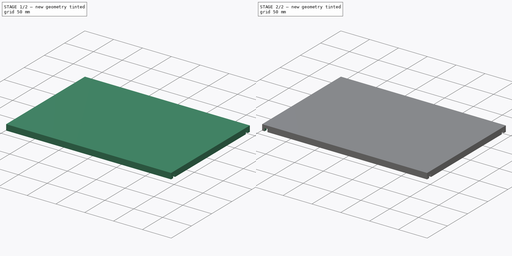
[diagram: build sequence overview — one tinted view per stage of 2, left to right]
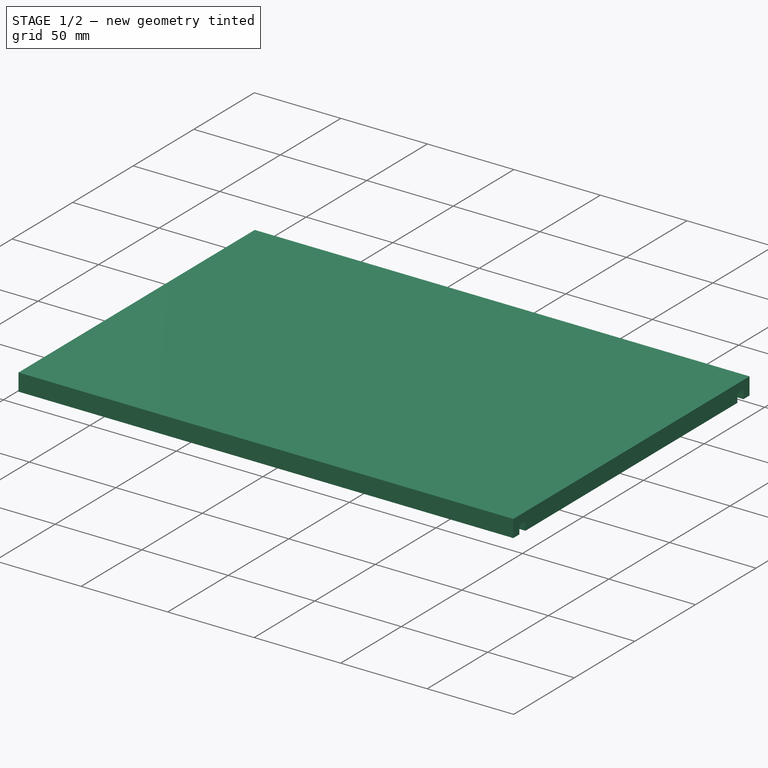
[diagram: stage 1 of 2 — iso view after this stage's code; geometry added in this stage tinted green]
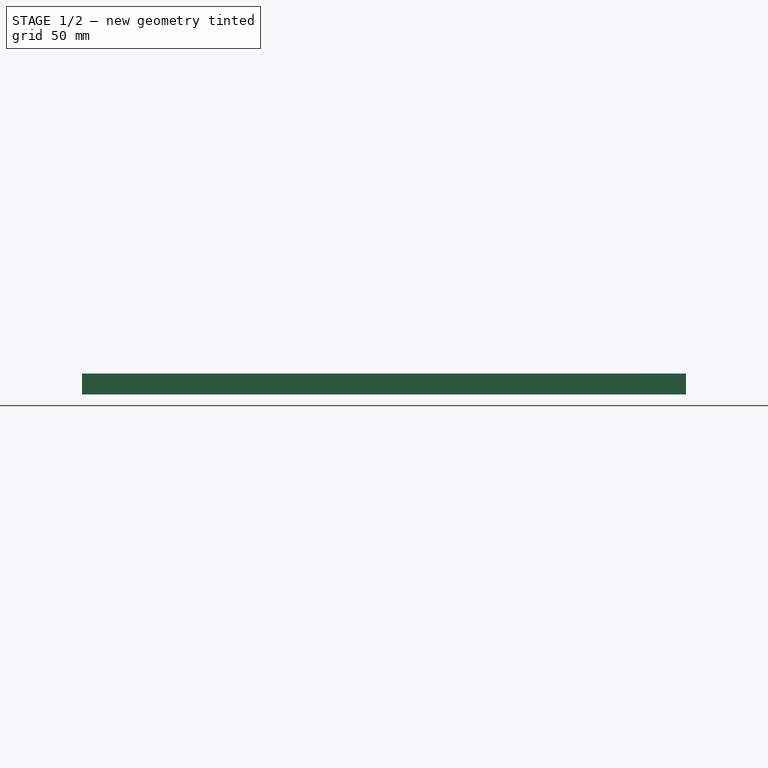
[diagram: stage 1 of 2 — front view after this stage's code; geometry added in this stage tinted green]
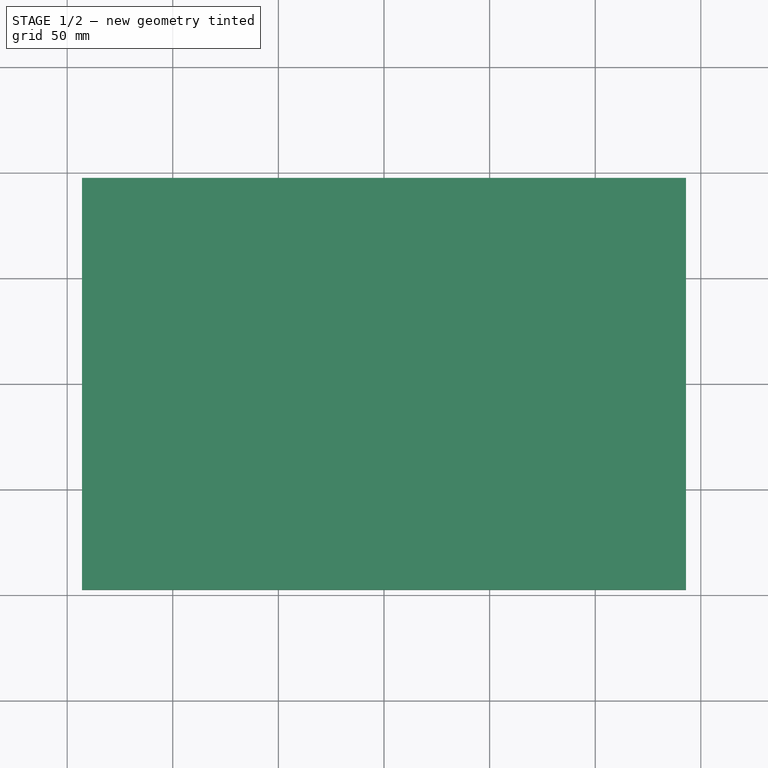
[diagram: stage 1 of 2 — top view after this stage's code; geometry added in this stage tinted green]
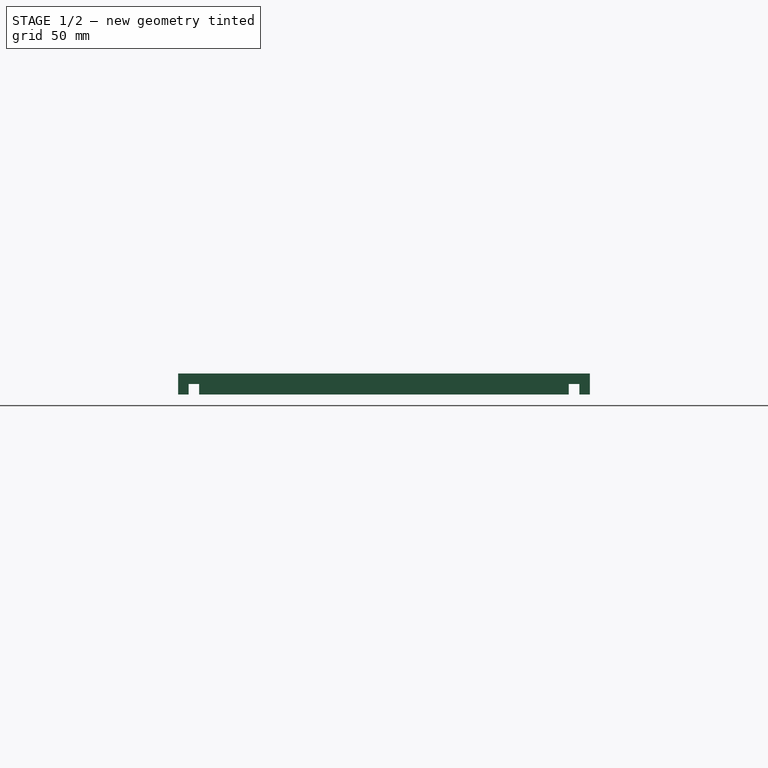
[diagram: stage 1 of 2 — right view after this stage's code; geometry added in this stage tinted green]
FCSTD DOCUMENT  (FreeCAD 0.21R33771 (Git))
Label: boitier
License: All rights reserved
LicenseURL: https://en.wikipedia.org/wiki/All_rights_reserved
objects: Sketcher::SketchObject×3, PartDesign::Pocket×2, PartDesign::Pad×1, PartDesign::Body×1
note: 10 computed .brp shape members not serialized (recipe doc carries the construction recipe); baked Part::Feature solids carry a one-line shape summary decoded from their .brp

FEATURE [Sketcher::SketchObject] Sketch
  FullyConstrained = false
  MapMode = 5
  Support = -> [XY_Plane]
  sketch-geometry (4):
    g0: LineSegment StartX=-143 StartY=-97.5 StartZ=0 EndX=-143 EndY=97.5 EndZ=0
    g1: LineSegment StartX=-143 StartY=97.5 StartZ=0 EndX=143 EndY=97.5 EndZ=0
    g2: LineSegment StartX=143 StartY=97.5 StartZ=0 EndX=143 EndY=-97.5 EndZ=0
    g3: LineSegment StartX=143 StartY=-97.5 StartZ=0 EndX=-143 EndY=-97.5 EndZ=0
  constraints (10):
    c: Coincident(g0,g1)
    c: Coincident(g1,g2)
    c: Coincident(g2,g3)
    c: Coincident(g3,g0)
    c: Horizontal(g1)
    c: Horizontal(g3)
    c: Vertical(g0)
    c: Vertical(g2)
    c: DistanceX(g3,g3) = 286
    c: DistanceY(g0,g0) = 195
FEATURE [PartDesign::Pad] Pad
  Direction = (0,0,1)
  Length = 10
  Length2 = 10
  Profile = -> Sketch
  ReferenceAxis = -> Sketch [N_Axis]
  Type = 0
FEATURE [Sketcher::SketchObject] Sketch001
  FullyConstrained = false
  MapMode = 5
  Support = -> [XY_Plane]
  sketch-geometry (20):
    g0: LineSegment StartX=-27.6278 StartY=-82.5 StartZ=0 EndX=-27.6278 EndY=82.5 EndZ=0
    g1: LineSegment StartX=-27.6278 StartY=82.5 StartZ=0 EndX=127.372 EndY=82.5 EndZ=0
    g2: LineSegment StartX=127.372 StartY=82.5 StartZ=0 EndX=127.372 EndY=-82.5 EndZ=0
    g3: LineSegment StartX=127.372 StartY=-82.5 StartZ=0 EndX=-27.6278 EndY=-82.5 EndZ=0
    g4: GeomPoint X=49.8722 Y=0 Z=0
    g5: LineSegment StartX=-32.6278 StartY=-28 StartZ=0 EndX=-32.6278 EndY=28 EndZ=0
    g6: LineSegment StartX=-32.6278 StartY=28 StartZ=0 EndX=-128.628 EndY=28 EndZ=0
    g7: LineSegment StartX=-128.628 StartY=28 StartZ=0 EndX=-128.628 EndY=-28 EndZ=0
    g8: LineSegment StartX=-128.628 StartY=-28 StartZ=0 EndX=-32.6278 EndY=-28 EndZ=0
    g9: GeomPoint X=-80.6278 Y=0 Z=0
    g10: LineSegment StartX=-149.262 StartY=87.5 StartZ=0 EndX=-149.262 EndY=92.5 EndZ=0
    g11: LineSegment StartX=-149.262 StartY=92.5 StartZ=0 EndX=149.262 EndY=92.5 EndZ=0
    g12: LineSegment StartX=149.262 StartY=92.5 StartZ=0 EndX=149.262 EndY=87.5 EndZ=0
    g13: LineSegment StartX=149.262 StartY=87.5 StartZ=0 EndX=-149.262 EndY=87.5 EndZ=0
    g14: GeomPoint X=0 Y=90 Z=0
    g15: LineSegment StartX=-148.933 StartY=-92.5 StartZ=0 EndX=-148.933 EndY=-87.5 EndZ=0
    g16: LineSegment StartX=-148.933 StartY=-87.5 StartZ=0 EndX=148.933 EndY=-87.5 EndZ=0
    g17: LineSegment StartX=148.933 StartY=-87.5 StartZ=0 EndX=148.933 EndY=-92.5 EndZ=0
    g18: LineSegment StartX=148.933 StartY=-92.5 StartZ=0 EndX=-148.933 EndY=-92.5 EndZ=0
    g19: GeomPoint X=0 Y=-90 Z=0
  constraints (49):
    c: Coincident(g0,g1)
    c: Coincident(g1,g2)
    c: Coincident(g2,g3)
    c: Coincident(g3,g0)
    c: Horizontal(g1)
    c: Horizontal(g3)
    c: Vertical(g0)
    c: Vertical(g2)
    c: Symmetric(g1,g0,g4)
    c: PointOnObject(g4,g-1)
    c: DistanceX(g1,g1) = 155
    c: DistanceY(g2,g2) = 165
    c: Coincident(g5,g6)
    c: Coincident(g6,g7)
    c: Coincident(g7,g8)
    c: Coincident(g8,g5)
    c: Horizontal(g6)
    c: Horizontal(g8)
    c: Vertical(g5)
    c: Vertical(g7)
    c: Symmetric(g6,g5,g9)
    c: PointOnObject(g9,g-1)
    c: DistanceX(g6,g6) = 96
    c: DistanceY(g5,g5) = 56
    c: Coincident(g10,g11)
    c: Coincident(g11,g12)
    c: Coincident(g12,g13)
    c: Coincident(g13,g10)
    c: Horizontal(g11)
    c: Horizontal(g13)
    c: Vertical(g10)
    c: Vertical(g12)
    c: Symmetric(g11,g10,g14)
    c: PointOnObject(g14,g-2)
    c: DistanceY(g10,g10) = 5
    c: Distance(g0,g13) = 5
    c: Coincident(g15,g16)
    c: Coincident(g16,g17)
    c: Coincident(g17,g18)
    c: Coincident(g18,g15)
    c: Horizontal(g16)
    c: Horizontal(g18)
    c: Vertical(g15)
    c: Vertical(g17)
    c: Symmetric(g16,g15,g19)
    c: PointOnObject(g19,g-2)
    c: DistanceY(g15,g15) = 5
    c: Distance(g0,g16) = 5
    c: Distance(g5,g0) = 5
FEATURE [PartDesign::Pocket] Pocket
  BaseFeature = -> Pad
  Direction = (0,0,-1)
  Length = 5
  Length2 = 5
  Profile = -> Sketch001
  ReferenceAxis = -> Sketch001 [N_Axis]
  Refine = true
  Type = 4
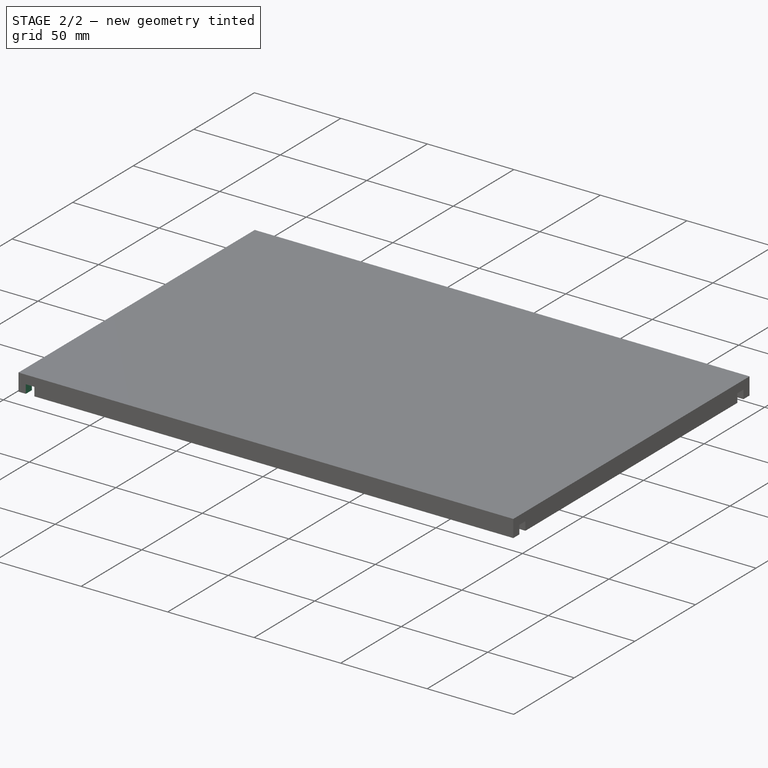
[diagram: stage 2 of 2 — iso view after this stage's code; geometry added in this stage tinted green]
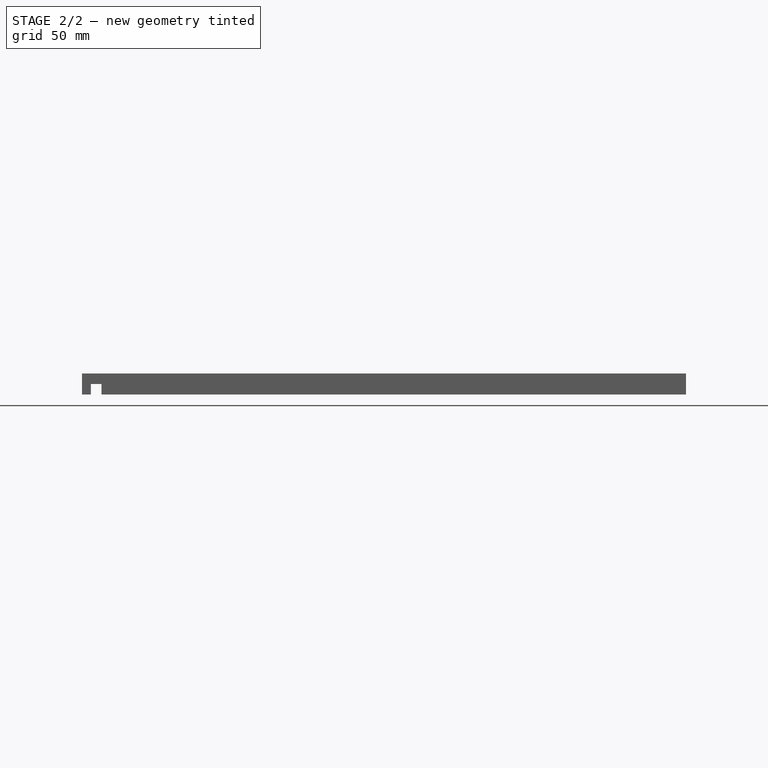
[diagram: stage 2 of 2 — front view after this stage's code; geometry added in this stage tinted green]
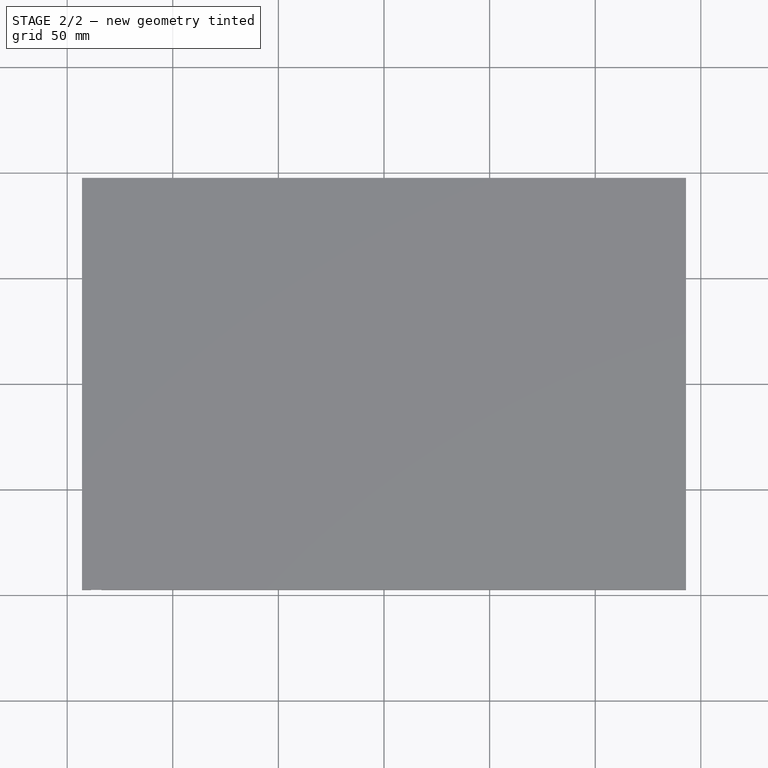
[diagram: stage 2 of 2 — top view after this stage's code; geometry added in this stage tinted green]
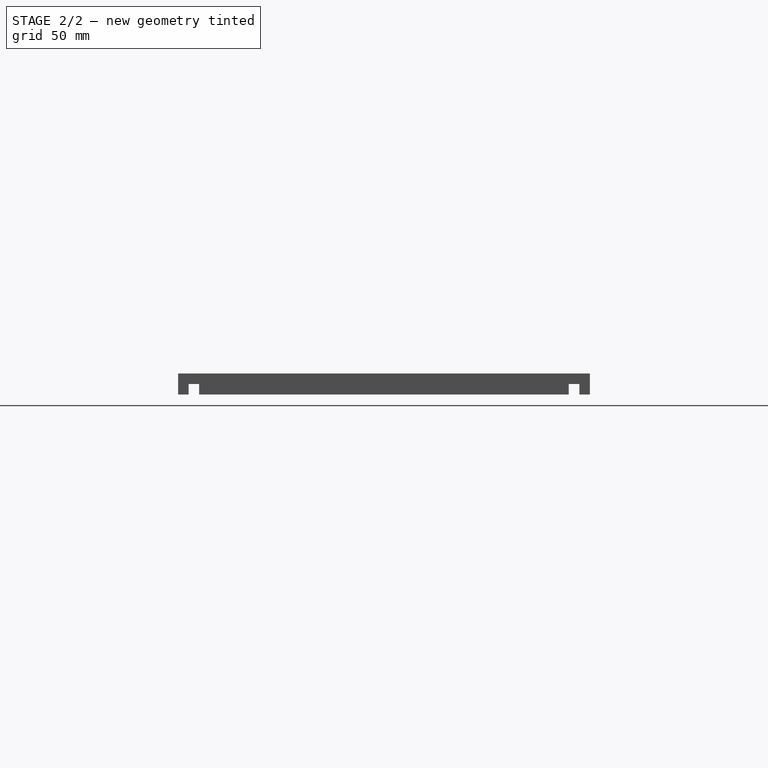
[diagram: stage 2 of 2 — right view after this stage's code; geometry added in this stage tinted green]
FEATURE [Sketcher::SketchObject] Sketch002
  FullyConstrained = false
  MapMode = 5
  Support = -> [XY_Plane]
  sketch-geometry (11):
    g0: LineSegment StartX=-138.401 StartY=-101.033 StartZ=0 EndX=-138.401 EndY=101.033 EndZ=0
    g1: LineSegment StartX=-138.401 StartY=101.033 StartZ=0 EndX=-133.401 EndY=101.033 EndZ=0
    g2: LineSegment StartX=-133.401 StartY=101.033 StartZ=0 EndX=-133.401 EndY=-101.033 EndZ=0
    g3: LineSegment StartX=-133.401 StartY=-101.033 StartZ=0 EndX=-138.401 EndY=-101.033 EndZ=0
    g4: GeomPoint X=-135.901 Y=0 Z=0
    g5: LineSegment StartX=132.383 StartY=100.056 StartZ=0 EndX=132.383 EndY=-100.056 EndZ=0
    g6: LineSegment StartX=132.383 StartY=-100.056 StartZ=0 EndX=137.383 EndY=-100.056 EndZ=0
    g7: LineSegment StartX=137.383 StartY=-100.056 StartZ=0 EndX=137.383 EndY=100.056 EndZ=0
    g8: LineSegment StartX=137.383 StartY=100.056 StartZ=0 EndX=132.383 EndY=100.056 EndZ=0
    g9: GeomPoint X=134.883 Y=0 Z=0
    g10: LineSegment StartX=-128.401 StartY=28.1595 StartZ=0 EndX=-128.401 EndY=-27.2894 EndZ=0
  constraints (24):
    c: Coincident(g0,g1)
    c: Coincident(g1,g2)
    c: Coincident(g2,g3)
    c: Coincident(g3,g0)
    c: Horizontal(g1)
    c: Horizontal(g3)
    c: Vertical(g0)
    c: Vertical(g2)
    c: Symmetric(g1,g0,g4)
    c: PointOnObject(g4,g-1)
    c: DistanceX(g1,g1) = 5
    c: Coincident(g5,g6)
    c: Coincident(g6,g7)
    c: Coincident(g7,g8)
    c: Coincident(g8,g5)
    c: Horizontal(g6)
    c: Horizontal(g8)
    c: Vertical(g5)
    c: Vertical(g7)
    c: Symmetric(g6,g5,g9)
    c: PointOnObject(g9,g-1)
    c: DistanceX(g6,g6) = 5
    c: Vertical(g10)
    c: DistanceX(g1,g10) = 5
FEATURE [PartDesign::Pocket] Pocket001
  BaseFeature = -> Pocket
  Direction = (0,0,-1)
  Length = 5
  Length2 = 5
  Profile = -> Sketch002
  ReferenceAxis = -> Sketch002 [N_Axis]
  Type = 4
FEATURE [PartDesign::Body] Body
  Group = -> [Sketch,Pad,Sketch001,Pocket,Sketch002,Pocket001]
  Origin = -> Origin
  Tip = -> Pocket001
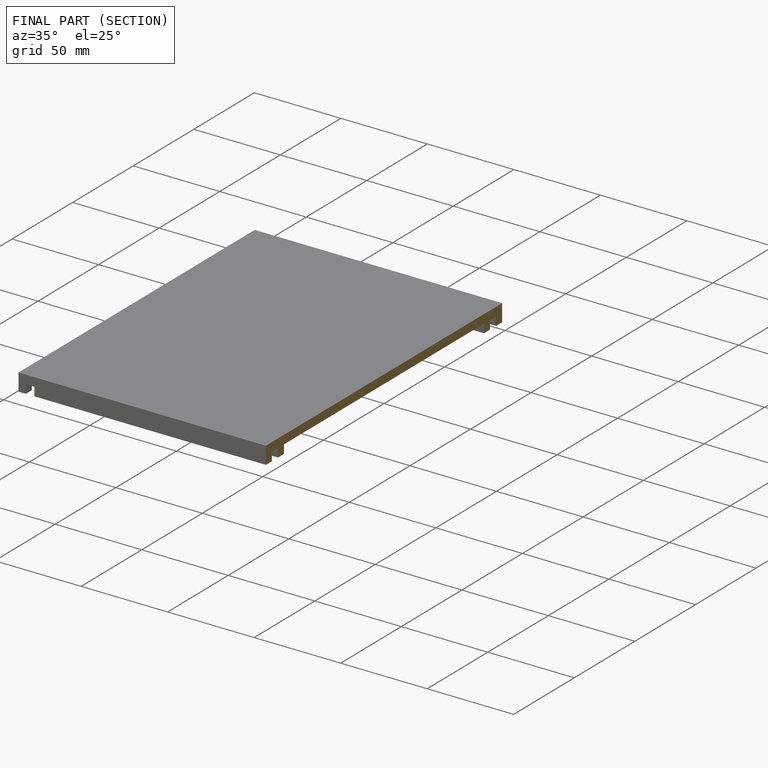
[diagram: finished part — half-section view (interior)]
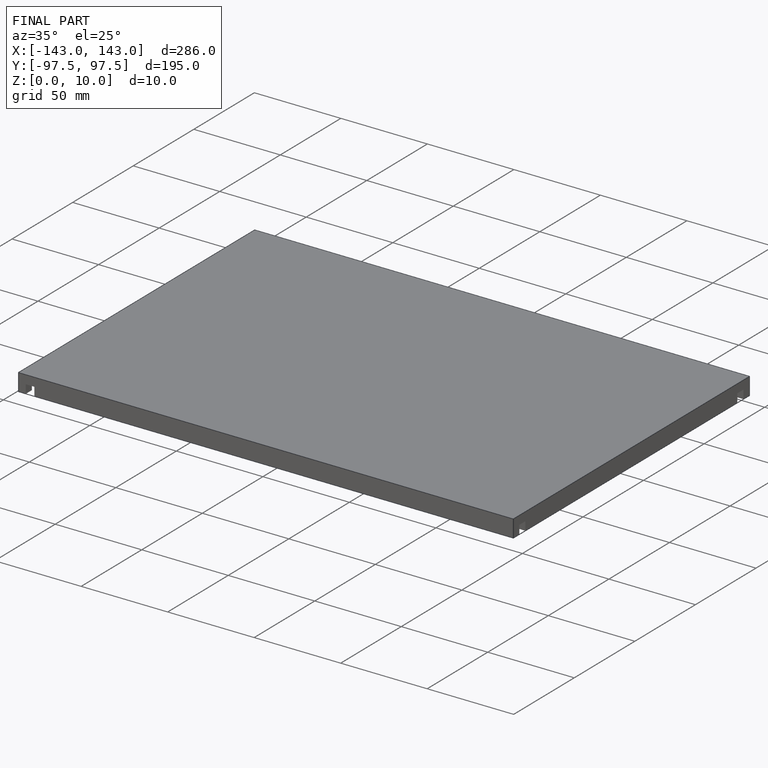
[diagram: finished part — iso view with bounding-box wireframe]
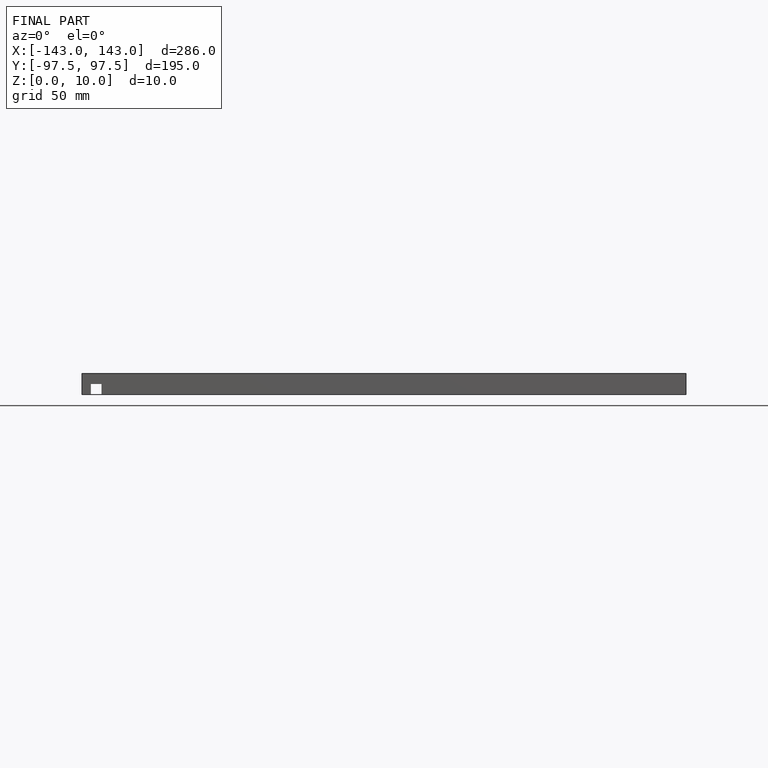
[diagram: finished part — front view with bounding-box wireframe]
